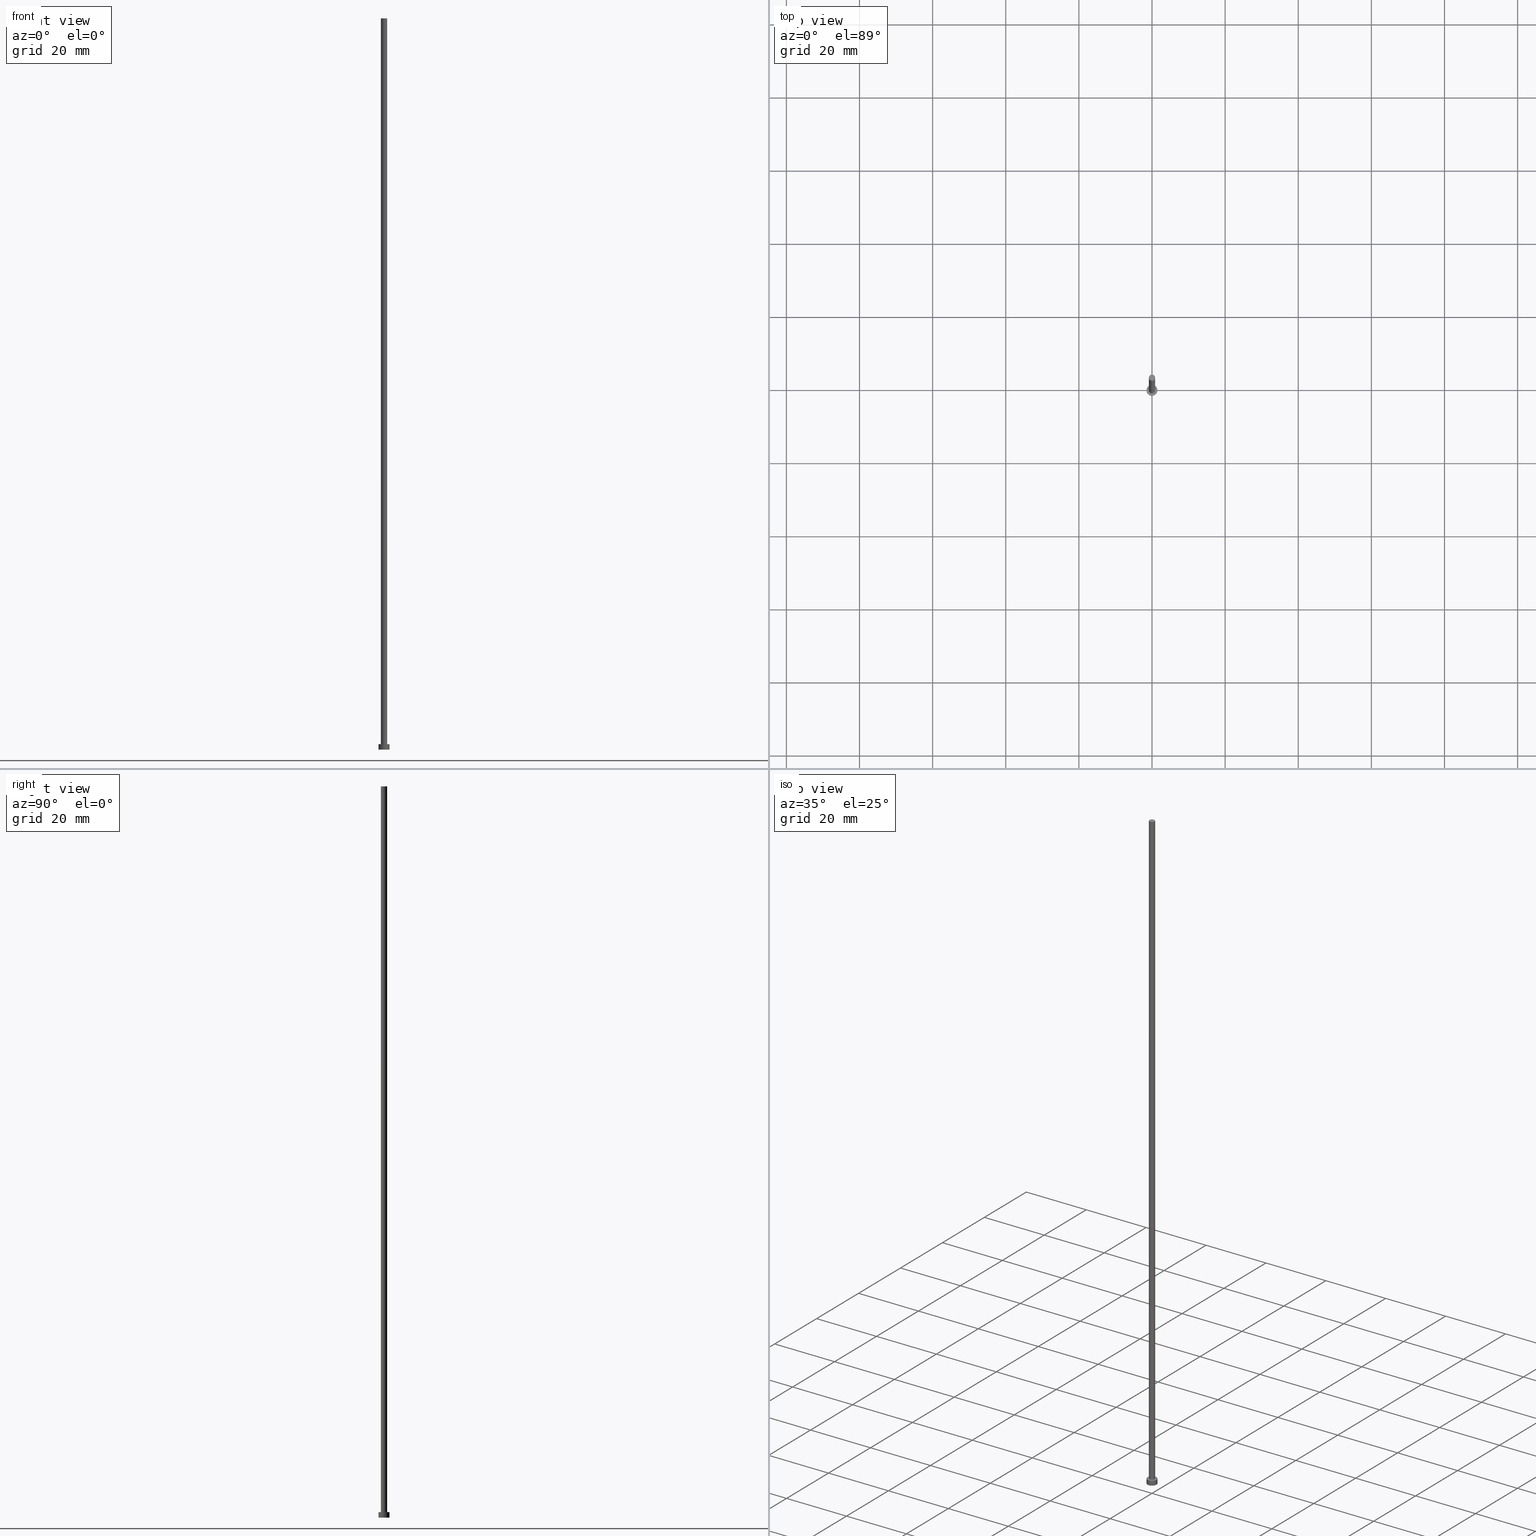
[diagram: canonical four-view strip — front | top / right | iso, engineering-drawing reading convention]
A machine part, canonical four-view strip (front | top / right | iso — engineering-drawing reading convention). The complete STEP part file that produces these views, byte-faithful:
ISO-10303-21;
HEADER;
FILE_DESCRIPTION (( 'STEP AP203' ),
    '1' );
FILE_NAME ('cfba.STEP',
    '2026-02-06T12:32:39',
    ( '' ),
    ( '' ),
    'SwSTEP 2.0',
    'SolidWorks 2019',
    '' );
FILE_SCHEMA (( 'CONFIG_CONTROL_DESIGN' ));
ENDSEC;

DATA;
#1 = FACE_OUTER_BOUND ( 'NONE', #4, .T. ) ;
#2 = AXIS2_PLACEMENT_3D ( 'NONE', #27, #94, #178 ) ;
#3 = AXIS2_PLACEMENT_3D ( 'NONE', #37, #103, #71 ) ;
#4 = EDGE_LOOP ( 'NONE', ( #154, #110, #78, #205 ) ) ;
#5 = PRODUCT ( 'cfba', 'cfba', '', ( #198 ) ) ;
#6 = CARTESIAN_POINT ( 'NONE',  ( 1.500000000000000222, 1.836970198721030181E-16, 0.000000000000000000 ) ) ;
#7 = EDGE_CURVE ( 'NONE', #115, #251, #190, .T. ) ;
#8 = PERSON_AND_ORGANIZATION_ROLE ( 'creator' ) ;
#9 = PERSON_AND_ORGANIZATION ( #170, #141 ) ;
#10 = ORIENTED_EDGE ( 'NONE', *, *, #155, .T. ) ;
#11 = CC_DESIGN_PERSON_AND_ORGANIZATION_ASSIGNMENT ( #95, #46, ( #35 ) ) ;
#12 = AXIS2_PLACEMENT_3D ( 'NONE', #99, #200, #182 ) ;
#13 = COORDINATED_UNIVERSAL_TIME_OFFSET ( 1, 0, .AHEAD. ) ;
#14 = DIRECTION ( 'NONE',  ( 0.000000000000000000, 0.000000000000000000, 1.000000000000000000 ) ) ;
#15 = DIRECTION ( 'NONE',  ( 1.000000000000000000, 0.000000000000000000, 0.000000000000000000 ) ) ;
#16 = CARTESIAN_POINT ( 'NONE',  ( 0.000000000000000000, 0.000000000000000000, 0.000000000000000000 ) ) ;
#17 = CARTESIAN_POINT ( 'NONE',  ( 1.500000000000000222, 1.836970198721030181E-16, 1.500000000000000000 ) ) ;
#18 = CIRCLE ( 'NONE', #104, 1.500000000000000222 ) ;
#19 =( GEOMETRIC_REPRESENTATION_CONTEXT ( 3 ) GLOBAL_UNCERTAINTY_ASSIGNED_CONTEXT ( ( #40 ) ) GLOBAL_UNIT_ASSIGNED_CONTEXT ( ( #166, #149, #243 ) ) REPRESENTATION_CONTEXT ( 'NONE', 'WORKASPACE' ) );
#20 = CYLINDRICAL_SURFACE ( 'NONE', #2, 0.8499999999999999778 ) ;
#21 = ORIENTED_EDGE ( 'NONE', *, *, #116, .T. ) ;
#22 = CIRCLE ( 'NONE', #113, 1.500000000000000222 ) ;
#23 = EDGE_CURVE ( 'NONE', #92, #161, #209, .T. ) ;
#24 = CARTESIAN_POINT ( 'NONE',  ( -1.500000000000000222, 0.000000000000000000, 1.500000000000000000 ) ) ;
#25 = CC_DESIGN_APPROVAL ( #227, ( #145 ) ) ;
#26 = AXIS2_PLACEMENT_3D ( 'NONE', #188, #225, #36 ) ;
#27 = CARTESIAN_POINT ( 'NONE',  ( 0.000000000000000000, 0.000000000000000000, 200.0000000000000000 ) ) ;
#28 = COORDINATED_UNIVERSAL_TIME_OFFSET ( 1, 0, .AHEAD. ) ;
#29 = ADVANCED_FACE ( 'NONE', ( #192 ), #20, .T. ) ;
#30 = PERSON_AND_ORGANIZATION ( #170, #141 ) ;
#31 = CARTESIAN_POINT ( 'NONE',  ( 0.000000000000000000, 0.000000000000000000, 0.000000000000000000 ) ) ;
#32 = PERSON_AND_ORGANIZATION ( #170, #141 ) ;
#33 = DIRECTION ( 'NONE',  ( -1.000000000000000000, 0.000000000000000000, 0.000000000000000000 ) ) ;
#34 = FACE_BOUND ( 'NONE', #193, .T. ) ;
#35 = PRODUCT_DEFINITION_FORMATION_WITH_SPECIFIED_SOURCE ( 'LIBOVOLN�', '', #5, .NOT_KNOWN. ) ;
#36 = DIRECTION ( 'NONE',  ( 1.000000000000000000, 0.000000000000000000, 0.000000000000000000 ) ) ;
#37 = CARTESIAN_POINT ( 'NONE',  ( 0.000000000000000000, 0.000000000000000000, 1.500000000000000000 ) ) ;
#38 = APPROVAL ( #121, 'NEUR�EN�' ) ;
#39 = DIRECTION ( 'NONE',  ( -0.000000000000000000, -0.000000000000000000, -1.000000000000000000 ) ) ;
#40 = UNCERTAINTY_MEASURE_WITH_UNIT (LENGTH_MEASURE( 1.000000000000000082E-05 ), #166, 'distance_accuracy_value', 'NONE');
#41 = DIRECTION ( 'NONE',  ( 0.000000000000000000, 0.000000000000000000, 1.000000000000000000 ) ) ;
#42 = EDGE_LOOP ( 'NONE', ( #214, #232, #194, #21 ) ) ;
#43 = DIRECTION ( 'NONE',  ( -0.000000000000000000, -0.000000000000000000, -1.000000000000000000 ) ) ;
#44 = ORIENTED_EDGE ( 'NONE', *, *, #47, .T. ) ;
#45 = VERTEX_POINT ( 'NONE', #93 ) ;
#46 = PERSON_AND_ORGANIZATION_ROLE ( 'design_supplier' ) ;
#47 = EDGE_CURVE ( 'NONE', #151, #45, #62, .T. ) ;
#48 = APPLICATION_PROTOCOL_DEFINITION ( 'international standard', 'config_control_design', 1994, #156 ) ;
#49 = ORIENTED_EDGE ( 'NONE', *, *, #23, .T. ) ;
#50 = COORDINATED_UNIVERSAL_TIME_OFFSET ( 1, 0, .AHEAD. ) ;
#51 = CALENDAR_DATE ( 2026, 6, 2 ) ;
#52 = CARTESIAN_POINT ( 'NONE',  ( 0.000000000000000000, 0.000000000000000000, 1.500000000000000000 ) ) ;
#53 = CARTESIAN_POINT ( 'NONE',  ( 1.500000000000000222, 1.836970198721030181E-16, 1.500000000000000000 ) ) ;
#54 = CC_DESIGN_SECURITY_CLASSIFICATION ( #145, ( #35 ) ) ;
#55 = DIRECTION ( 'NONE',  ( 1.000000000000000000, 0.000000000000000000, 0.000000000000000000 ) ) ;
#56 = CC_DESIGN_DATE_AND_TIME_ASSIGNMENT ( #98, #181, ( #76 ) ) ;
#57 = CARTESIAN_POINT ( 'NONE',  ( -0.8499999999999999778, 0.000000000000000000, 1.500000000000000000 ) ) ;
#58 = ORIENTED_EDGE ( 'NONE', *, *, #139, .F. ) ;
#59 = EDGE_LOOP ( 'NONE', ( #233, #191 ) ) ;
#60 = VERTEX_POINT ( 'NONE', #6 ) ;
#61 = DIRECTION ( 'NONE',  ( 1.000000000000000000, 0.000000000000000000, 0.000000000000000000 ) ) ;
#62 = LINE ( 'NONE', #133, #249 ) ;
#63 = DATE_AND_TIME ( #221, #202 ) ;
#64 = CC_DESIGN_APPROVAL ( #38, ( #76 ) ) ;
#65 = APPROVAL_DATE_TIME ( #63, #38 ) ;
#66 = APPROVAL_STATUS ( 'not_yet_approved' ) ;
#67 = AXIS2_PLACEMENT_3D ( 'NONE', #31, #118, #82 ) ;
#68 = PERSON_AND_ORGANIZATION_ROLE ( 'creator' ) ;
#69 = AXIS2_PLACEMENT_3D ( 'NONE', #86, #83, #162 ) ;
#70 = FACE_OUTER_BOUND ( 'NONE', #88, .T. ) ;
#71 = DIRECTION ( 'NONE',  ( 1.000000000000000000, 0.000000000000000000, 0.000000000000000000 ) ) ;
#72 = CLOSED_SHELL ( 'NONE', ( #29, #111, #230, #250, #85, #223, #132 ) ) ;
#73 = CARTESIAN_POINT ( 'NONE',  ( 0.000000000000000000, 0.000000000000000000, 1.500000000000000000 ) ) ;
#74 = VECTOR ( 'NONE', #43, 1000.000000000000000 ) ;
#75 = CARTESIAN_POINT ( 'NONE',  ( 0.000000000000000000, 0.000000000000000000, 1.500000000000000000 ) ) ;
#76 = PRODUCT_DEFINITION ( 'NEZN�M�', '', #35, #217 ) ;
#77 = DIRECTION ( 'NONE',  ( -0.000000000000000000, -0.000000000000000000, -1.000000000000000000 ) ) ;
#78 = ORIENTED_EDGE ( 'NONE', *, *, #246, .T. ) ;
#79 = FACE_OUTER_BOUND ( 'NONE', #237, .T. ) ;
#80 = PERSON_AND_ORGANIZATION_ROLE ( 'classification_officer' ) ;
#81 = APPROVAL_ROLE ( '' ) ;
#82 = DIRECTION ( 'NONE',  ( 1.000000000000000000, 0.000000000000000000, 0.000000000000000000 ) ) ;
#83 = DIRECTION ( 'NONE',  ( 0.000000000000000000, 0.000000000000000000, 1.000000000000000000 ) ) ;
#84 = DIRECTION ( 'NONE',  ( 1.000000000000000000, 0.000000000000000000, -0.000000000000000000 ) ) ;
#85 = ADVANCED_FACE ( 'NONE', ( #79 ), #175, .F. ) ;
#86 = CARTESIAN_POINT ( 'NONE',  ( 0.000000000000000000, 0.000000000000000000, 1.500000000000000000 ) ) ;
#87 = AXIS2_PLACEMENT_3D ( 'NONE', #114, #89, #174 ) ;
#88 = EDGE_LOOP ( 'NONE', ( #211, #112, #49, #206 ) ) ;
#89 = DIRECTION ( 'NONE',  ( 0.000000000000000000, 0.000000000000000000, 1.000000000000000000 ) ) ;
#90 = ORIENTED_EDGE ( 'NONE', *, *, #143, .T. ) ;
#91 = CC_DESIGN_PERSON_AND_ORGANIZATION_ASSIGNMENT ( #30, #8, ( #35 ) ) ;
#92 = VERTEX_POINT ( 'NONE', #253 ) ;
#93 = CARTESIAN_POINT ( 'NONE',  ( 0.8499999999999999778, 1.040949779275250140E-16, 1.500000000000000000 ) ) ;
#94 = DIRECTION ( 'NONE',  ( -0.000000000000000000, -0.000000000000000000, -1.000000000000000000 ) ) ;
#95 = PERSON_AND_ORGANIZATION ( #170, #141 ) ;
#96 = CALENDAR_DATE ( 2026, 6, 2 ) ;
#97 = APPROVAL_ROLE ( '' ) ;
#98 = DATE_AND_TIME ( #51, #238 ) ;
#99 = CARTESIAN_POINT ( 'NONE',  ( 0.000000000000000000, 0.000000000000000000, 0.000000000000000000 ) ) ;
#100 = VECTOR ( 'NONE', #77, 1000.000000000000000 ) ;
#101 = DIRECTION ( 'NONE',  ( 0.000000000000000000, 0.000000000000000000, 1.000000000000000000 ) ) ;
#102 = PLANE ( 'NONE',  #137 ) ;
#103 = DIRECTION ( 'NONE',  ( 0.000000000000000000, 0.000000000000000000, 1.000000000000000000 ) ) ;
#104 = AXIS2_PLACEMENT_3D ( 'NONE', #16, #247, #55 ) ;
#105 = PLANE ( 'NONE',  #130 ) ;
#106 = CIRCLE ( 'NONE', #26, 0.8499999999999999778 ) ;
#107 = AXIS2_PLACEMENT_3D ( 'NONE', #147, #201, #33 ) ;
#108 = EDGE_LOOP ( 'NONE', ( #90, #134 ) ) ;
#109 = EDGE_CURVE ( 'NONE', #176, #115, #22, .T. ) ;
#110 = ORIENTED_EDGE ( 'NONE', *, *, #136, .T. ) ;
#111 = ADVANCED_FACE ( 'NONE', ( #1 ), #135, .T. ) ;
#112 = ORIENTED_EDGE ( 'NONE', *, *, #208, .F. ) ;
#113 = AXIS2_PLACEMENT_3D ( 'NONE', #73, #41, #61 ) ;
#114 = CARTESIAN_POINT ( 'NONE',  ( 0.000000000000000000, 0.000000000000000000, 0.000000000000000000 ) ) ;
#115 = VERTEX_POINT ( 'NONE', #128 ) ;
#116 = EDGE_CURVE ( 'NONE', #251, #60, #18, .T. ) ;
#117 = ORIENTED_EDGE ( 'NONE', *, *, #246, .F. ) ;
#118 = DIRECTION ( 'NONE',  ( 0.000000000000000000, 0.000000000000000000, 1.000000000000000000 ) ) ;
#119 = ORIENTED_EDGE ( 'NONE', *, *, #23, .F. ) ;
#120 = PERSON_AND_ORGANIZATION ( #170, #141 ) ;
#121 = APPROVAL_STATUS ( 'not_yet_approved' ) ;
#122 = CC_DESIGN_PERSON_AND_ORGANIZATION_ASSIGNMENT ( #144, #219, ( #5 ) ) ;
#123 = CIRCLE ( 'NONE', #69, 0.8499999999999999778 ) ;
#124 = CARTESIAN_POINT ( 'NONE',  ( 0.000000000000000000, 0.000000000000000000, 200.0000000000000000 ) ) ;
#125 = AXIS2_PLACEMENT_3D ( 'NONE', #75, #152, #212 ) ;
#126 = CYLINDRICAL_SURFACE ( 'NONE', #107, 1.500000000000000222 ) ;
#127 = LOCAL_TIME ( 13, 32, 39.00000000000000000, #13 ) ;
#128 = CARTESIAN_POINT ( 'NONE',  ( -1.500000000000000222, 0.000000000000000000, 1.500000000000000000 ) ) ;
#129 = DIRECTION ( 'NONE',  ( 0.000000000000000000, 0.000000000000000000, 1.000000000000000000 ) ) ;
#130 = AXIS2_PLACEMENT_3D ( 'NONE', #244, #14, #229 ) ;
#131 = APPROVAL_PERSON_ORGANIZATION ( #120, #38, #97 ) ;
#132 = ADVANCED_FACE ( 'NONE', ( #169 ), #105, .T. ) ;
#133 = CARTESIAN_POINT ( 'NONE',  ( 0.8499999999999999778, 1.040949779275250140E-16, 200.0000000000000000 ) ) ;
#134 = ORIENTED_EDGE ( 'NONE', *, *, #109, .T. ) ;
#135 = CYLINDRICAL_SURFACE ( 'NONE', #125, 1.500000000000000222 ) ;
#136 = EDGE_CURVE ( 'NONE', #176, #60, #224, .T. ) ;
#137 = AXIS2_PLACEMENT_3D ( 'NONE', #186, #101, #84 ) ;
#138 = ORIENTED_EDGE ( 'NONE', *, *, #185, .F. ) ;
#139 = EDGE_CURVE ( 'NONE', #151, #92, #106, .T. ) ;
#140 = CALENDAR_DATE ( 2026, 6, 2 ) ;
#141 = ORGANIZATION ( 'NEUR�EN�', 'NEUR�EN�', '' ) ;
#142 = APPROVAL_DATE_TIME ( #215, #210 ) ;
#143 = EDGE_CURVE ( 'NONE', #115, #176, #164, .T. ) ;
#144 = PERSON_AND_ORGANIZATION ( #170, #141 ) ;
#145 = SECURITY_CLASSIFICATION ( '', '', #240 ) ;
#146 = CIRCLE ( 'NONE', #3, 0.8499999999999999778 ) ;
#147 = CARTESIAN_POINT ( 'NONE',  ( 0.000000000000000000, 0.000000000000000000, 1.500000000000000000 ) ) ;
#148 = CYLINDRICAL_SURFACE ( 'NONE', #167, 0.8499999999999999778 ) ;
#149 =( NAMED_UNIT ( * ) PLANE_ANGLE_UNIT ( ) SI_UNIT ( $, .RADIAN. ) );
#150 = CARTESIAN_POINT ( 'NONE',  ( 0.000000000000000000, 0.000000000000000000, 200.0000000000000000 ) ) ;
#151 = VERTEX_POINT ( 'NONE', #165 ) ;
#152 = DIRECTION ( 'NONE',  ( -0.000000000000000000, -0.000000000000000000, -1.000000000000000000 ) ) ;
#153 = DIRECTION ( 'NONE',  ( -0.000000000000000000, -0.000000000000000000, -1.000000000000000000 ) ) ;
#154 = ORIENTED_EDGE ( 'NONE', *, *, #109, .F. ) ;
#155 = EDGE_CURVE ( 'NONE', #45, #161, #146, .T. ) ;
#156 = APPLICATION_CONTEXT ( 'configuration controlled 3d designs of mechanical parts and assemblies' ) ;
#157 = DATE_AND_TIME ( #96, #252 ) ;
#158 = CALENDAR_DATE ( 2026, 6, 2 ) ;
#159 = LOCAL_TIME ( 13, 32, 39.00000000000000000, #160 ) ;
#160 = COORDINATED_UNIVERSAL_TIME_OFFSET ( 1, 0, .AHEAD. ) ;
#161 = VERTEX_POINT ( 'NONE', #57 ) ;
#162 = DIRECTION ( 'NONE',  ( 1.000000000000000000, 0.000000000000000000, 0.000000000000000000 ) ) ;
#163 = CC_DESIGN_APPROVAL ( #210, ( #35 ) ) ;
#164 = CIRCLE ( 'NONE', #234, 1.500000000000000222 ) ;
#165 = CARTESIAN_POINT ( 'NONE',  ( 0.8499999999999999778, 1.040949779275250140E-16, 200.0000000000000000 ) ) ;
#166 =( LENGTH_UNIT ( ) NAMED_UNIT ( * ) SI_UNIT ( .MILLI., .METRE. ) );
#167 = AXIS2_PLACEMENT_3D ( 'NONE', #124, #39, #189 ) ;
#168 = APPLICATION_CONTEXT ( 'configuration controlled 3d designs of mechanical parts and assemblies' ) ;
#169 = FACE_OUTER_BOUND ( 'NONE', #59, .T. ) ;
#170 = PERSON ( 'NEUR�EN�', 'NEUR�EN�', 'NEUR�EN�', ('NEUR�EN�'), ('NEUR�EN�'), ('NEUR�EN�') ) ;
#171 = CC_DESIGN_DATE_AND_TIME_ASSIGNMENT ( #157, #239, ( #145 ) ) ;
#172 = ORIENTED_EDGE ( 'NONE', *, *, #155, .F. ) ;
#173 = APPROVAL_PERSON_ORGANIZATION ( #218, #210, #196 ) ;
#174 = DIRECTION ( 'NONE',  ( 1.000000000000000000, 0.000000000000000000, -0.000000000000000000 ) ) ;
#175 = PLANE ( 'NONE',  #87 ) ;
#176 = VERTEX_POINT ( 'NONE', #17 ) ;
#177 = ORIENTED_EDGE ( 'NONE', *, *, #116, .F. ) ;
#178 = DIRECTION ( 'NONE',  ( -1.000000000000000000, 0.000000000000000000, 0.000000000000000000 ) ) ;
#179 = PRODUCT_DEFINITION_SHAPE ( 'NONE', 'NONE',  #76 ) ;
#180 = COORDINATED_UNIVERSAL_TIME_OFFSET ( 1, 0, .AHEAD. ) ;
#181 = DATE_TIME_ROLE ( 'creation_date' ) ;
#182 = DIRECTION ( 'NONE',  ( 1.000000000000000000, 0.000000000000000000, 0.000000000000000000 ) ) ;
#183 = DIRECTION ( 'NONE',  ( 0.000000000000000000, 0.000000000000000000, 1.000000000000000000 ) ) ;
#184 = APPROVAL_PERSON_ORGANIZATION ( #9, #227, #81 ) ;
#185 = EDGE_CURVE ( 'NONE', #161, #45, #123, .T. ) ;
#186 = CARTESIAN_POINT ( 'NONE',  ( 0.000000000000000000, 0.000000000000000000, 1.500000000000000000 ) ) ;
#187 = CC_DESIGN_PERSON_AND_ORGANIZATION_ASSIGNMENT ( #195, #80, ( #145 ) ) ;
#188 = CARTESIAN_POINT ( 'NONE',  ( 0.000000000000000000, 0.000000000000000000, 200.0000000000000000 ) ) ;
#189 = DIRECTION ( 'NONE',  ( -1.000000000000000000, 0.000000000000000000, 0.000000000000000000 ) ) ;
#190 = LINE ( 'NONE', #24, #100 ) ;
#191 = ORIENTED_EDGE ( 'NONE', *, *, #139, .T. ) ;
#192 = FACE_OUTER_BOUND ( 'NONE', #255, .T. ) ;
#193 = EDGE_LOOP ( 'NONE', ( #138, #172 ) ) ;
#194 = ORIENTED_EDGE ( 'NONE', *, *, #7, .T. ) ;
#195 = PERSON_AND_ORGANIZATION ( #170, #141 ) ;
#196 = APPROVAL_ROLE ( '' ) ;
#197 = APPROVAL_STATUS ( 'not_yet_approved' ) ;
#198 = MECHANICAL_CONTEXT ( 'NONE', #156, 'mechanical' ) ;
#199 = FACE_OUTER_BOUND ( 'NONE', #42, .T. ) ;
#200 = DIRECTION ( 'NONE',  ( 0.000000000000000000, 0.000000000000000000, 1.000000000000000000 ) ) ;
#201 = DIRECTION ( 'NONE',  ( -0.000000000000000000, -0.000000000000000000, -1.000000000000000000 ) ) ;
#202 = LOCAL_TIME ( 13, 32, 39.00000000000000000, #180 ) ;
#203 = DIRECTION ( 'NONE',  ( -0.000000000000000000, -0.000000000000000000, -1.000000000000000000 ) ) ;
#204 = DIRECTION ( 'NONE',  ( 1.000000000000000000, 0.000000000000000000, 0.000000000000000000 ) ) ;
#205 = ORIENTED_EDGE ( 'NONE', *, *, #7, .F. ) ;
#206 = ORIENTED_EDGE ( 'NONE', *, *, #185, .T. ) ;
#207 = ADVANCED_BREP_SHAPE_REPRESENTATION ( 'cfba', ( #231, #67 ), #19 ) ;
#208 = EDGE_CURVE ( 'NONE', #92, #151, #226, .T. ) ;
#209 = LINE ( 'NONE', #235, #74 ) ;
#210 = APPROVAL ( #197, 'NEUR�EN�' ) ;
#211 = ORIENTED_EDGE ( 'NONE', *, *, #47, .F. ) ;
#212 = DIRECTION ( 'NONE',  ( -1.000000000000000000, 0.000000000000000000, 0.000000000000000000 ) ) ;
#213 = APPROVAL_DATE_TIME ( #236, #227 ) ;
#214 = ORIENTED_EDGE ( 'NONE', *, *, #136, .F. ) ;
#215 = DATE_AND_TIME ( #140, #127 ) ;
#216 = SHAPE_DEFINITION_REPRESENTATION ( #179, #207 ) ;
#217 = DESIGN_CONTEXT ( 'detailed design', #168, 'design' ) ;
#218 = PERSON_AND_ORGANIZATION ( #170, #141 ) ;
#219 = PERSON_AND_ORGANIZATION_ROLE ( 'design_owner' ) ;
#220 = AXIS2_PLACEMENT_3D ( 'NONE', #150, #129, #204 ) ;
#221 = CALENDAR_DATE ( 2026, 6, 2 ) ;
#222 = VECTOR ( 'NONE', #203, 1000.000000000000000 ) ;
#223 = ADVANCED_FACE ( 'NONE', ( #70 ), #148, .T. ) ;
#224 = LINE ( 'NONE', #53, #222 ) ;
#225 = DIRECTION ( 'NONE',  ( 0.000000000000000000, 0.000000000000000000, 1.000000000000000000 ) ) ;
#226 = CIRCLE ( 'NONE', #220, 0.8499999999999999778 ) ;
#227 = APPROVAL ( #66, 'NEUR�EN�' ) ;
#228 = FACE_OUTER_BOUND ( 'NONE', #108, .T. ) ;
#229 = DIRECTION ( 'NONE',  ( 1.000000000000000000, 0.000000000000000000, -0.000000000000000000 ) ) ;
#230 = ADVANCED_FACE ( 'NONE', ( #199 ), #126, .T. ) ;
#231 = MANIFOLD_SOLID_BREP ( 'P�idat vysunut�m3', #72 ) ;
#232 = ORIENTED_EDGE ( 'NONE', *, *, #143, .F. ) ;
#233 = ORIENTED_EDGE ( 'NONE', *, *, #208, .T. ) ;
#234 = AXIS2_PLACEMENT_3D ( 'NONE', #52, #183, #15 ) ;
#235 = CARTESIAN_POINT ( 'NONE',  ( -0.8499999999999999778, 0.000000000000000000, 200.0000000000000000 ) ) ;
#236 = DATE_AND_TIME ( #158, #159 ) ;
#237 = EDGE_LOOP ( 'NONE', ( #177, #117 ) ) ;
#238 = LOCAL_TIME ( 13, 32, 39.00000000000000000, #50 ) ;
#239 = DATE_TIME_ROLE ( 'classification_date' ) ;
#240 = SECURITY_CLASSIFICATION_LEVEL ( 'unclassified' ) ;
#241 = CC_DESIGN_PERSON_AND_ORGANIZATION_ASSIGNMENT ( #32, #68, ( #76 ) ) ;
#242 = APPLICATION_PROTOCOL_DEFINITION ( 'international standard', 'config_control_design', 1994, #168 ) ;
#243 =( NAMED_UNIT ( * ) SI_UNIT ( $, .STERADIAN. ) SOLID_ANGLE_UNIT ( ) );
#244 = CARTESIAN_POINT ( 'NONE',  ( 0.000000000000000000, 0.000000000000000000, 200.0000000000000000 ) ) ;
#245 = CARTESIAN_POINT ( 'NONE',  ( -1.500000000000000222, 0.000000000000000000, 0.000000000000000000 ) ) ;
#246 = EDGE_CURVE ( 'NONE', #60, #251, #248, .T. ) ;
#247 = DIRECTION ( 'NONE',  ( 0.000000000000000000, 0.000000000000000000, 1.000000000000000000 ) ) ;
#248 = CIRCLE ( 'NONE', #12, 1.500000000000000222 ) ;
#249 = VECTOR ( 'NONE', #153, 1000.000000000000000 ) ;
#250 = ADVANCED_FACE ( 'NONE', ( #34, #228 ), #102, .T. ) ;
#251 = VERTEX_POINT ( 'NONE', #245 ) ;
#252 = LOCAL_TIME ( 13, 32, 39.00000000000000000, #28 ) ;
#253 = CARTESIAN_POINT ( 'NONE',  ( -0.8499999999999999778, 0.000000000000000000, 200.0000000000000000 ) ) ;
#254 = PRODUCT_RELATED_PRODUCT_CATEGORY ( 'detail', '', ( #5 ) ) ;
#255 = EDGE_LOOP ( 'NONE', ( #58, #44, #10, #119 ) ) ;
ENDSEC;
END-ISO-10303-21;
